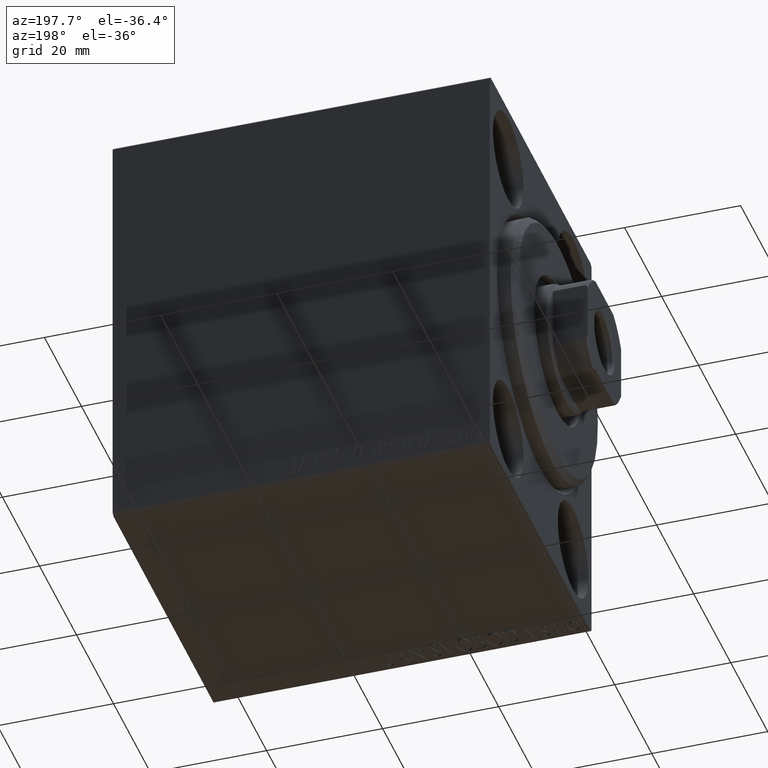
[diagram: clean part render]
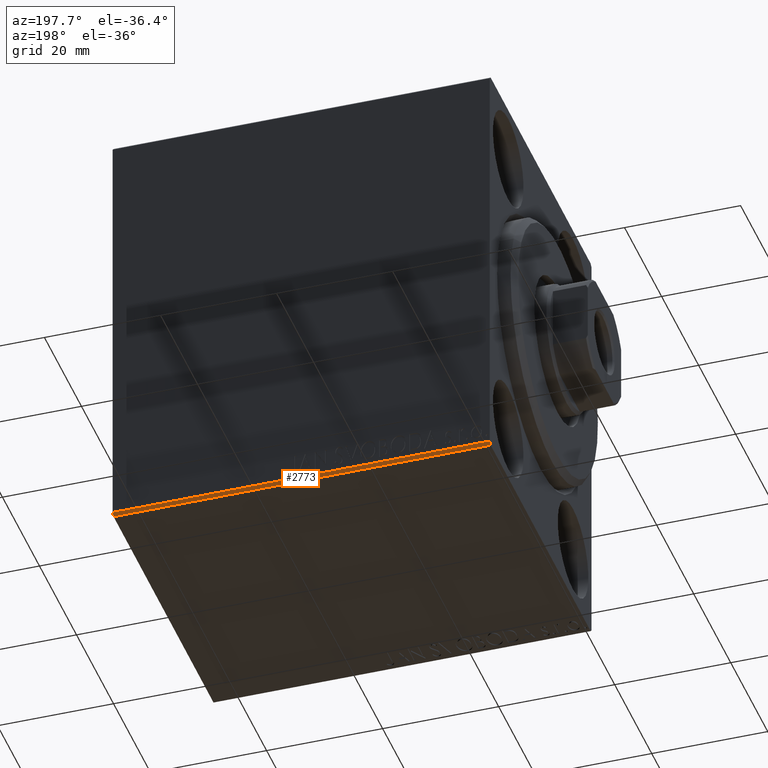
[diagram: same view with one face highlighted and labeled with its STEP entity id]
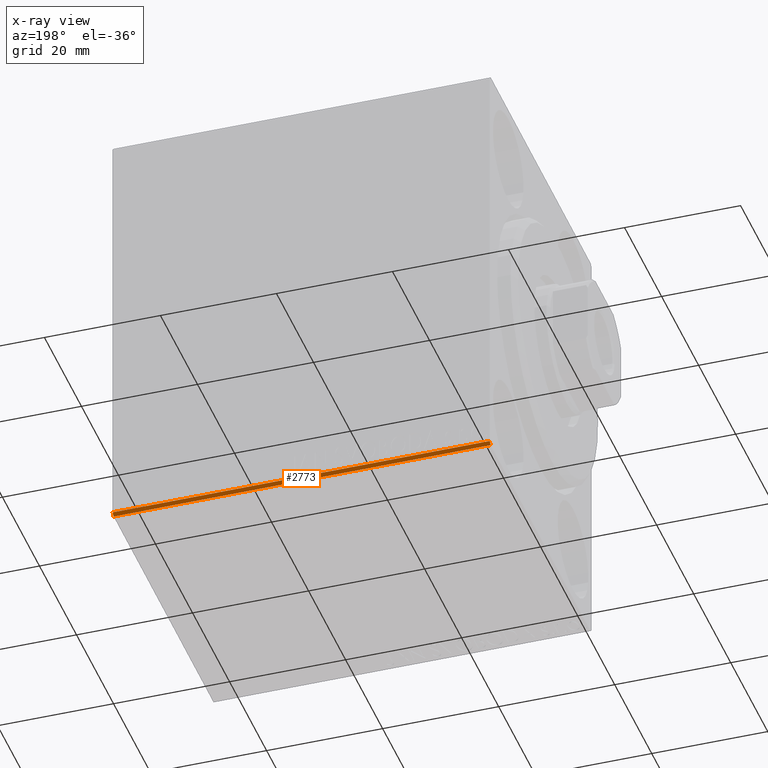
[diagram: x-ray of the same camera — body ghosted, the highlighted face saturated]
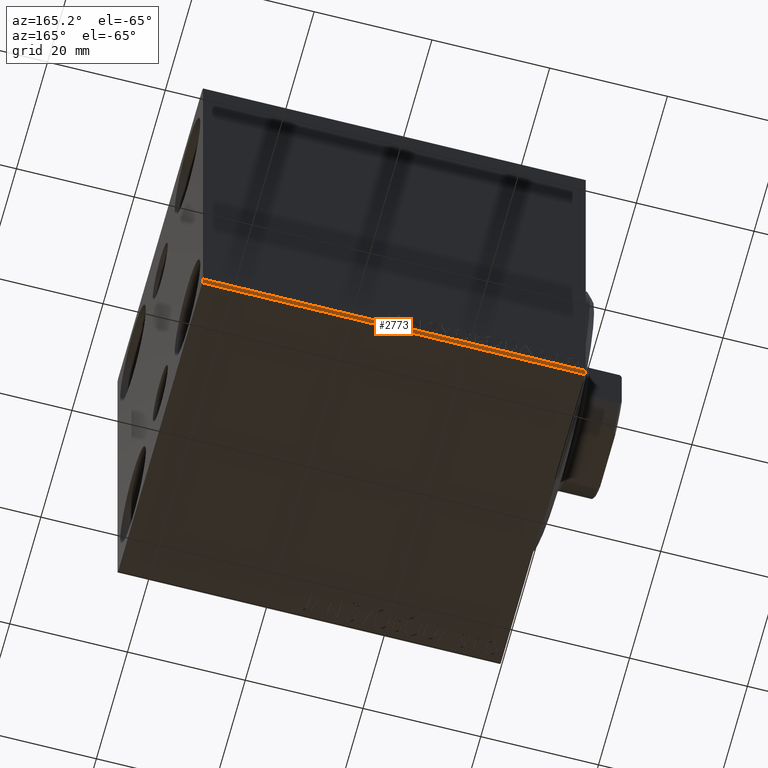
[diagram: same view with one face highlighted and labeled with its STEP entity id]
A machine part, auxiliary view. The second image highlights one B-rep face of the part: STEP entity #2773.
The next image is the same camera in x-ray: the body ghosted, the highlighted face saturated — about 0% of this face is hidden behind the body in this view.
A second angle (auxiliary view) of the same face is appended — the face is thin or edge-on in the first view.
In plain terms, the highlighted planar face has unit normal (0, -0.7071, 0.7071).
Its self-contained STEP definition (entity closure, byte-faithful):
#387 = DIRECTION ( 'NONE',  ( -1.000000000000000000, 0.000000000000000000, 0.000000000000000000 ) ) ;
#718 = PLANE ( 'NONE',  #29903 ) ;
#1453 = VERTEX_POINT ( 'NONE', #18438 ) ;
#2773 = ADVANCED_FACE ( 'NONE', ( #3808 ), #718, .F. ) ;
#2782 = EDGE_CURVE ( 'NONE', #13436, #1453, #7124, .T. ) ;
#3808 = FACE_OUTER_BOUND ( 'NONE', #14244, .T. ) ;
#4164 = DIRECTION ( 'NONE',  ( 1.000000000000000000, 0.000000000000000000, 0.000000000000000000 ) ) ;
#7124 = LINE ( 'NONE', #7778, #34129 ) ;
#7454 = LINE ( 'NONE', #20917, #22385 ) ;
#7778 = CARTESIAN_POINT ( 'NONE',  ( 0.000000000000000000, 27.50000000000000355, -37.00000000000000000 ) ) ;
#8715 = ORIENTED_EDGE ( 'NONE', *, *, #39073, .F. ) ;
#10857 = DIRECTION ( 'NONE',  ( 0.000000000000000000, -0.7071067811865475727, 0.7071067811865475727 ) ) ;
#11299 = CARTESIAN_POINT ( 'NONE',  ( 65.00000000000000000, 27.50000000000000355, -37.00000000000000000 ) ) ;
#12581 = VECTOR ( 'NONE', #29776, 1000.000000000000114 ) ;
#13063 = CARTESIAN_POINT ( 'NONE',  ( 0.000000000000000000, 27.50000000000000355, -37.00000000000000000 ) ) ;
#13436 = VERTEX_POINT ( 'NONE', #13063 ) ;
#14244 = EDGE_LOOP ( 'NONE', ( #43364, #41700, #42963, #8715 ) ) ;
#18438 = CARTESIAN_POINT ( 'NONE',  ( 0.000000000000000000, 27.00000000000000355, -37.50000000000000000 ) ) ;
#19886 = CARTESIAN_POINT ( 'NONE',  ( 65.00000000000000000, 27.50000000000000355, -37.00000000000000000 ) ) ;
#20911 = CARTESIAN_POINT ( 'NONE',  ( 65.00000000000000000, 27.50000000000000355, -37.00000000000000000 ) ) ;
#20917 = CARTESIAN_POINT ( 'NONE',  ( 65.00000000000000000, 27.00000000000000355, -37.50000000000000000 ) ) ;
#22385 = VECTOR ( 'NONE', #4164, 1000.000000000000000 ) ;
#23890 = DIRECTION ( 'NONE',  ( 0.000000000000000000, -0.7071067811865474617, -0.7071067811865474617 ) ) ;
#27524 = VERTEX_POINT ( 'NONE', #19886 ) ;
#29776 = DIRECTION ( 'NONE',  ( -0.000000000000000000, 0.7071067811865474617, 0.7071067811865474617 ) ) ;
#29903 = AXIS2_PLACEMENT_3D ( 'NONE', #11299, #10857, #40598 ) ;
#30920 = CARTESIAN_POINT ( 'NONE',  ( 65.00000000000000000, 27.00000000000000355, -37.50000000000000000 ) ) ;
#32712 = EDGE_CURVE ( 'NONE', #1453, #38530, #7454, .T. ) ;
#33508 = CARTESIAN_POINT ( 'NONE',  ( 65.00000000000000000, 32.25000000000000000, -32.25000000000000000 ) ) ;
#33952 = LINE ( 'NONE', #33508, #12581 ) ;
#34129 = VECTOR ( 'NONE', #23890, 1000.000000000000114 ) ;
#37896 = VECTOR ( 'NONE', #387, 1000.000000000000000 ) ;
#38530 = VERTEX_POINT ( 'NONE', #30920 ) ;
#39073 = EDGE_CURVE ( 'NONE', #27524, #13436, #43141, .T. ) ;
#39618 = EDGE_CURVE ( 'NONE', #38530, #27524, #33952, .T. ) ;
#40598 = DIRECTION ( 'NONE',  ( -1.000000000000000000, 0.000000000000000000, 0.000000000000000000 ) ) ;
#41700 = ORIENTED_EDGE ( 'NONE', *, *, #32712, .F. ) ;
#42963 = ORIENTED_EDGE ( 'NONE', *, *, #2782, .F. ) ;
#43141 = LINE ( 'NONE', #20911, #37896 ) ;
#43364 = ORIENTED_EDGE ( 'NONE', *, *, #39618, .F. ) ;